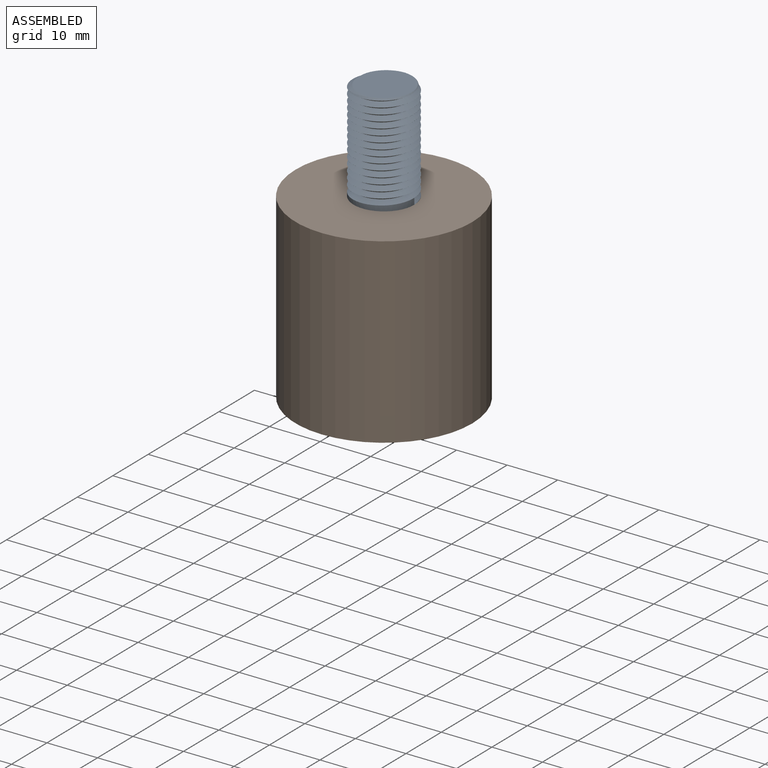
[diagram: assembled view]
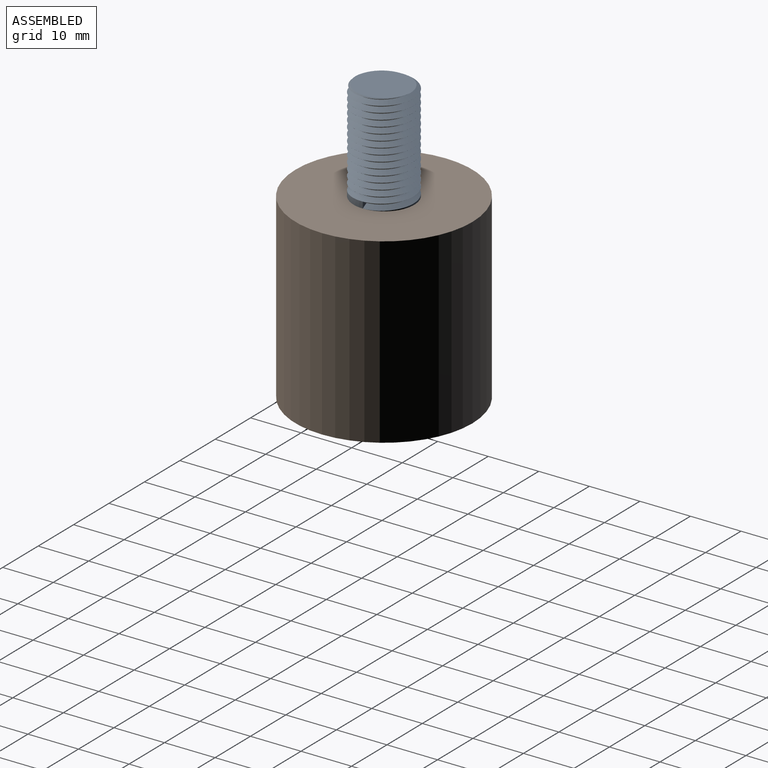
[diagram: assembled view, second angle]
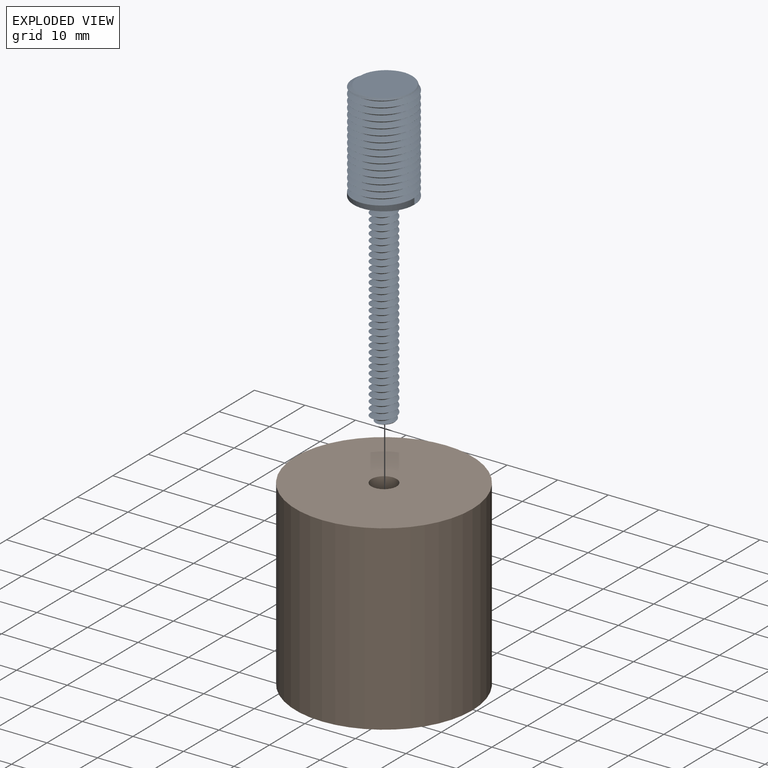
[diagram: exploded view]
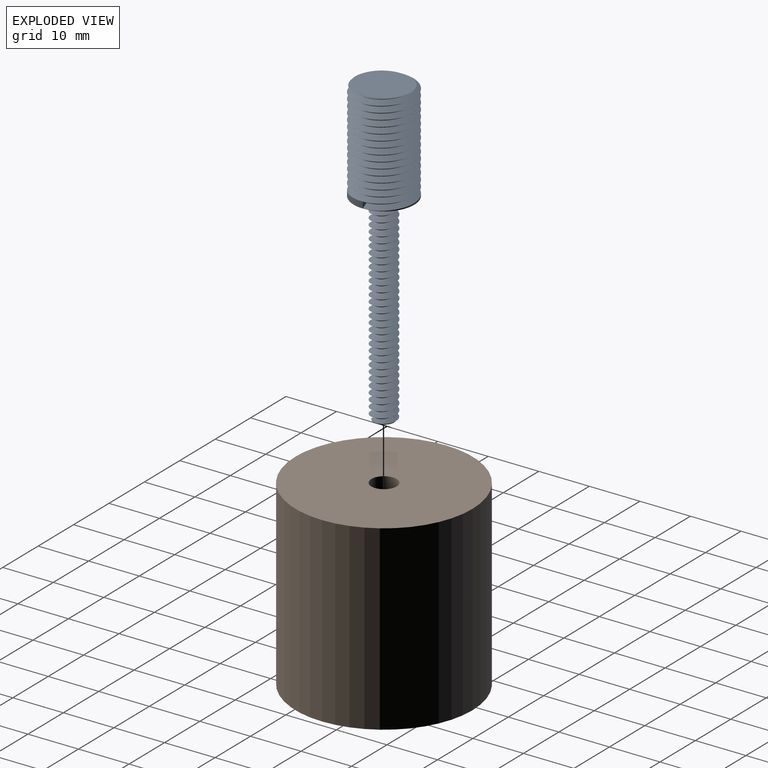
[diagram: exploded view, second angle]
ASSEMBLY  parts=2 mates=2
PART A: 13 faces, bbox 12.3x14.1x61.9 mm
  f0: cylinder r=6mm len=19.5mm, axis (0,0,-1), area -72.5mm2, adj f4,f5,f10,f11,f12
  f1: cylinder r=2.5mm len=39.5mm, axis (0,0,-1), area 85.4mm2, adj f4,f6,f7,f8,f9
  f2: plane 4.21x3.7mm, normal (0,0,-1), area 10.8mm2, adj f6,f7,f8
  f3: plane 11.22x10.71mm, normal (0,0,1), area 89.9mm2, adj f5,f11,f12
  f4: plane 12x12mm, normal (0,0,-1), area 93.5mm2, adj f0,f1
  f5: cone r=5.5mm half-angle=45deg, axis (0,0,-1), area 6mm2, adj f0,f3,f11,f12
  f6: cone r=2.5mm half-angle=45deg, axis (0,0,1), area 2.3mm2, adj f1,f2,f7,f8
  f7: bspline ~40.41x5.77mm, area 486.6mm2, adj f1,f2,f6,f8,f9
  f8: bspline ~40.2x5.77mm, area 478.6mm2, adj f1,f2,f6,f7,f9
  f9: plane 1.24x1.07mm, normal (0,-1,0), area 0.7mm2, adj f1,f7,f8
  f10: plane 1.24x1.07mm, normal (0,1,0), area 0.7mm2, adj f0,f11,f12
  f11: bspline ~20.41x13.86mm, area 665.8mm2, adj f0,f3,f5,f10,f12
  f12: bspline ~20.2x13.86mm, area 643.8mm2, adj f0,f3,f5,f10,f11
PART B: 6 faces, bbox 35x35x36 mm
  f0: cylinder r=15mm len=30mm, axis (0,0,-1), area 2450.4mm2, adj f2,f3
  f1: cylinder r=17.5mm len=36mm, axis (0,0,-1), area 3958.4mm2, adj f2,f4
  f2: plane 35x35mm, normal (0,0,-1), area 255.3mm2, adj f0,f1
  f3: plane 30x30mm, normal (0,0,-1), area 687.2mm2, adj f0,f5
  f4: plane 35x35mm, normal (0,0,1), area 942.5mm2, adj f1,f5
  f5: cylinder r=2.5mm len=10mm, axis (0,0,1), area 157.1mm2, adj f3,f4
PLACE A t=(-6.74,-2.29,13.14)mm
PLACE B t=(-6.74,-2.29,17.14)mm
MATE planar B.f1 <-> A.f0  axis (0,0,1) through (-6.74,-2.29,53.14)mm
MATE cylindrical A.f1 <-> B.f5  axis (0,0,-1) through (-6.74,-2.29,33.39)mm
